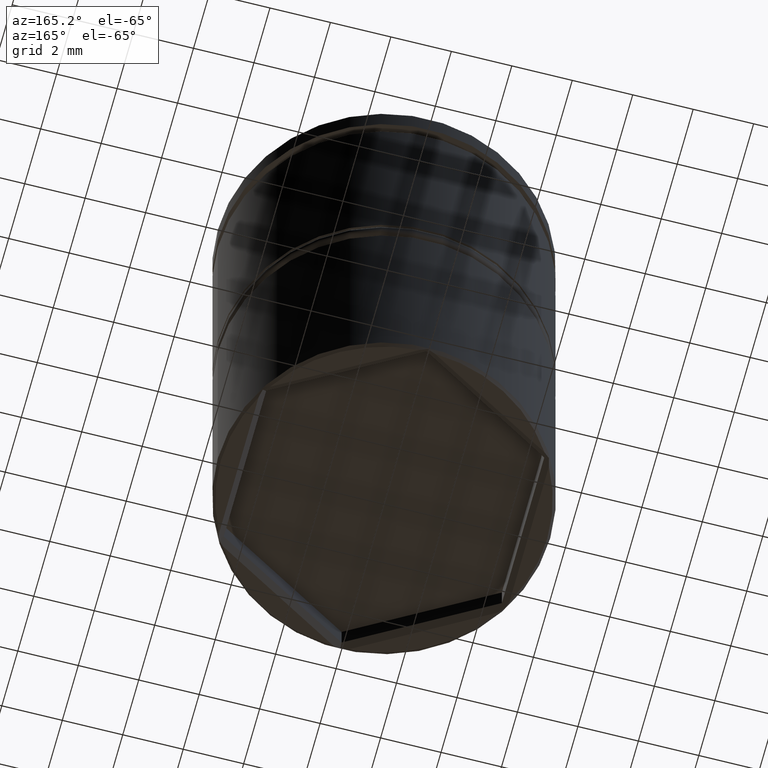
[diagram: clean part render]
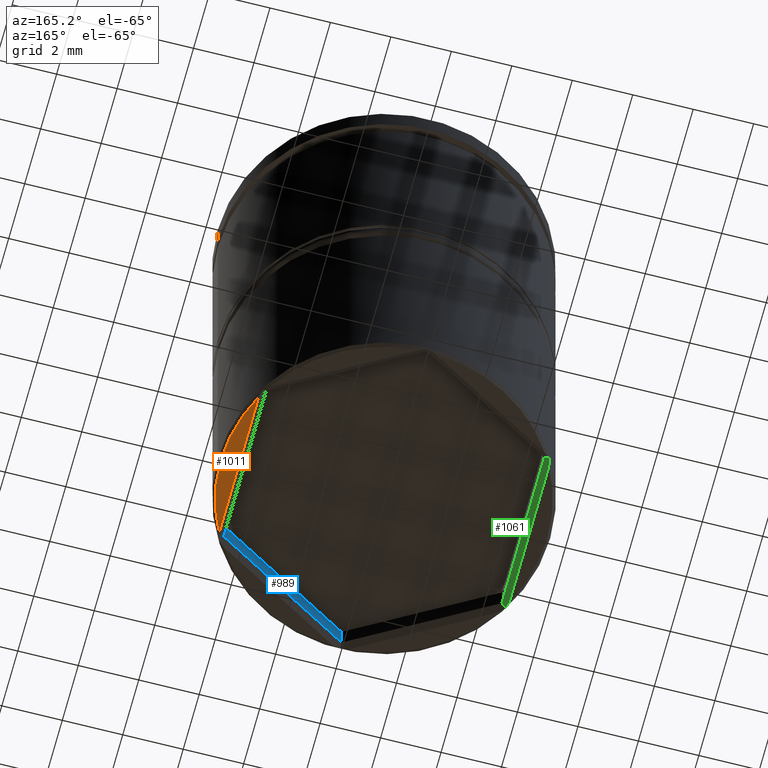
[diagram: same view with three faces highlighted in distinct colors, each labeled with its STEP entity id]
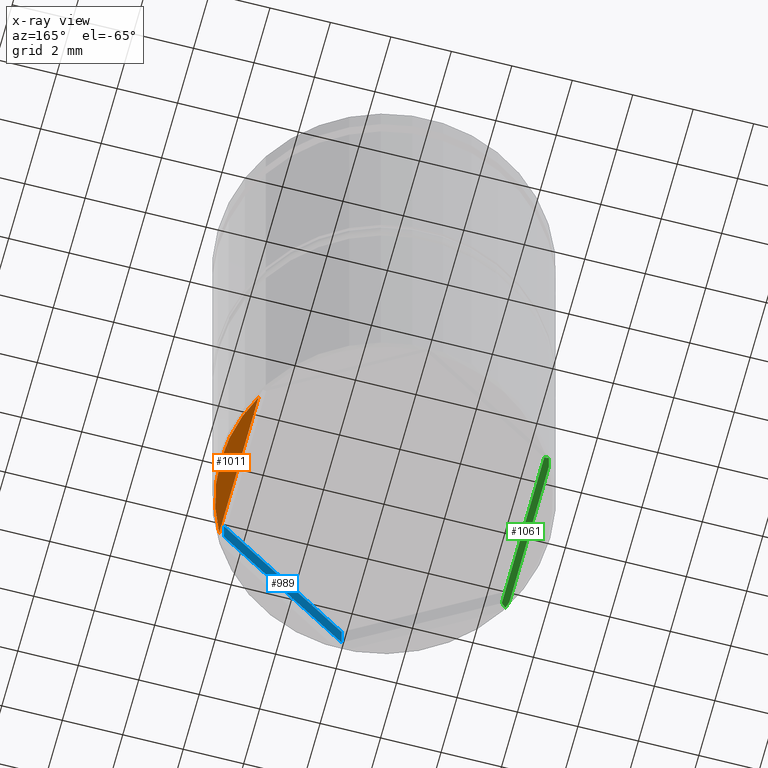
[diagram: x-ray of the same camera — body ghosted, the three highlighted faces saturated]
A machine part, auxiliary view with three faces highlighted in distinct colors.
The next image is the same camera in x-ray (body ghosted, the three faces saturated) — at least one of them is partly hidden behind the body in this view.
Their STEP definitions:

[orange] entity #1011 — the highlighted planar face has unit normal (0, 0, -1).
#32 = CARTESIAN_POINT ( 'NONE',  ( 0.000000000000000000, 0.000000000000000000, -17.50000000000000000 ) ) ;
#171 = CARTESIAN_POINT ( 'NONE',  ( 4.800000000000002487, 2.655811238272278718, -17.50000000000000000 ) ) ;
#182 = PLANE ( 'NONE',  #497 ) ;
#300 = DIRECTION ( 'NONE',  ( 0.000000000000000000, 0.000000000000000000, -1.000000000000000000 ) ) ;
#390 = DIRECTION ( 'NONE',  ( -1.000000000000000000, 0.000000000000000000, -0.000000000000000000 ) ) ;
#434 = EDGE_CURVE ( 'NONE', #600, #1277, #1068, .T. ) ;
#473 = EDGE_CURVE ( 'NONE', #895, #600, #696, .T. ) ;
#497 = AXIS2_PLACEMENT_3D ( 'NONE', #1057, #1350, #390 ) ;
#507 = CARTESIAN_POINT ( 'NONE',  ( 4.800000000000002487, 2.473863375370600082, -17.50000000000000000 ) ) ;
#530 = EDGE_CURVE ( 'NONE', #1277, #895, #542, .T. ) ;
#542 = CIRCLE ( 'NONE', #582, 5.400000000000003908 ) ;
#579 = EDGE_LOOP ( 'NONE', ( #1189, #1124, #1060 ) ) ;
#582 = AXIS2_PLACEMENT_3D ( 'NONE', #1257, #300, #1148 ) ;
#596 = DIRECTION ( 'NONE',  ( -0.000000000000000000, 1.000000000000000000, 0.000000000000000000 ) ) ;
#600 = VERTEX_POINT ( 'NONE', #507 ) ;
#696 = LINE ( 'NONE', #171, #1342 ) ;
#873 = DIRECTION ( 'NONE',  ( 0.000000000000000000, 0.000000000000000000, -1.000000000000000000 ) ) ;
#895 = VERTEX_POINT ( 'NONE', #1330 ) ;
#916 = DIRECTION ( 'NONE',  ( -1.000000000000000000, 0.000000000000000000, 0.000000000000000000 ) ) ;
#1011 = ADVANCED_FACE ( 'NONE', ( #1270 ), #182, .T. ) ;
#1057 = CARTESIAN_POINT ( 'NONE',  ( 0.000000000000000000, 5.500000000000000000, -17.50000000000000000 ) ) ;
#1060 = ORIENTED_EDGE ( 'NONE', *, *, #473, .T. ) ;
#1068 = CIRCLE ( 'NONE', #1250, 5.400000000000003908 ) ;
#1124 = ORIENTED_EDGE ( 'NONE', *, *, #530, .T. ) ;
#1148 = DIRECTION ( 'NONE',  ( -1.000000000000000000, 0.000000000000000000, 0.000000000000000000 ) ) ;
#1189 = ORIENTED_EDGE ( 'NONE', *, *, #434, .T. ) ;
#1228 = CARTESIAN_POINT ( 'NONE',  ( 5.400000000000003908, 0.000000000000000000, -17.50000000000000000 ) ) ;
#1250 = AXIS2_PLACEMENT_3D ( 'NONE', #32, #873, #916 ) ;
#1257 = CARTESIAN_POINT ( 'NONE',  ( 0.000000000000000000, 0.000000000000000000, -17.50000000000000000 ) ) ;
#1270 = FACE_OUTER_BOUND ( 'NONE', #579, .T. ) ;
#1277 = VERTEX_POINT ( 'NONE', #1228 ) ;
#1330 = CARTESIAN_POINT ( 'NONE',  ( 4.800000000000002487, -2.473863375370600082, -17.50000000000000000 ) ) ;
#1342 = VECTOR ( 'NONE', #596, 1000.000000000000000 ) ;
#1350 = DIRECTION ( 'NONE',  ( 0.000000000000000000, 0.000000000000000000, -1.000000000000000000 ) ) ;

[blue] entity #989 — the highlighted planar face has unit normal (0.5, -0.866, 0).
#6 = VECTOR ( 'NONE', #1030, 1000.000000000000000 ) ;
#42 = VECTOR ( 'NONE', #328, 1000.000000000000114 ) ;
#236 = EDGE_CURVE ( 'NONE', #614, #1282, #307, .T. ) ;
#298 = CARTESIAN_POINT ( 'NONE',  ( 4.600000000000003197, -2.655811238272280050, -16.50000000000000000 ) ) ;
#307 = LINE ( 'NONE', #941, #362 ) ;
#323 = EDGE_LOOP ( 'NONE', ( #1073, #867, #679, #772 ) ) ;
#328 = DIRECTION ( 'NONE',  ( -0.8660254037844385966, -0.4999999999999999445, 0.000000000000000000 ) ) ;
#362 = VECTOR ( 'NONE', #533, 1000.000000000000000 ) ;
#409 = CARTESIAN_POINT ( 'NONE',  ( -8.646952822150503169E-16, -5.311622476544560989, -16.50000000000000000 ) ) ;
#412 = DIRECTION ( 'NONE',  ( 0.8660254037844385966, 0.4999999999999999445, 0.000000000000000000 ) ) ;
#457 = LINE ( 'NONE', #1286, #42 ) ;
#462 = CARTESIAN_POINT ( 'NONE',  ( 4.600000000000003197, -2.655811238272280050, -16.50000000000000000 ) ) ;
#533 = DIRECTION ( 'NONE',  ( -0.000000000000000000, -0.000000000000000000, -1.000000000000000000 ) ) ;
#614 = VERTEX_POINT ( 'NONE', #409 ) ;
#661 = CARTESIAN_POINT ( 'NONE',  ( 4.600000000000003197, -2.655811238272280050, -17.30000000000000426 ) ) ;
#665 = EDGE_CURVE ( 'NONE', #1305, #727, #827, .T. ) ;
#679 = ORIENTED_EDGE ( 'NONE', *, *, #236, .F. ) ;
#727 = VERTEX_POINT ( 'NONE', #661 ) ;
#759 = CARTESIAN_POINT ( 'NONE',  ( 4.600000000000003197, -2.655811238272280050, -16.50000000000000000 ) ) ;
#765 = AXIS2_PLACEMENT_3D ( 'NONE', #1155, #1041, #412 ) ;
#772 = ORIENTED_EDGE ( 'NONE', *, *, #874, .F. ) ;
#815 = EDGE_CURVE ( 'NONE', #727, #1282, #457, .T. ) ;
#827 = LINE ( 'NONE', #298, #6 ) ;
#867 = ORIENTED_EDGE ( 'NONE', *, *, #815, .T. ) ;
#874 = EDGE_CURVE ( 'NONE', #1305, #614, #968, .T. ) ;
#941 = CARTESIAN_POINT ( 'NONE',  ( -8.646952822150503169E-16, -5.311622476544560989, -16.50000000000000000 ) ) ;
#944 = PLANE ( 'NONE',  #765 ) ;
#968 = LINE ( 'NONE', #462, #1069 ) ;
#989 = ADVANCED_FACE ( 'NONE', ( #1099 ), #944, .F. ) ;
#1030 = DIRECTION ( 'NONE',  ( -0.000000000000000000, -0.000000000000000000, -1.000000000000000000 ) ) ;
#1041 = DIRECTION ( 'NONE',  ( 0.5000000000000000000, -0.8660254037844387076, 0.000000000000000000 ) ) ;
#1069 = VECTOR ( 'NONE', #1313, 1000.000000000000114 ) ;
#1073 = ORIENTED_EDGE ( 'NONE', *, *, #665, .T. ) ;
#1099 = FACE_OUTER_BOUND ( 'NONE', #323, .T. ) ;
#1139 = CARTESIAN_POINT ( 'NONE',  ( -8.646952822150503169E-16, -5.311622476544560989, -17.30000000000000426 ) ) ;
#1155 = CARTESIAN_POINT ( 'NONE',  ( 4.600000000000003197, -2.655811238272280050, -16.50000000000000000 ) ) ;
#1282 = VERTEX_POINT ( 'NONE', #1139 ) ;
#1286 = CARTESIAN_POINT ( 'NONE',  ( -9.334475960612078863E-16, -5.311622476544560989, -17.30000000000000426 ) ) ;
#1305 = VERTEX_POINT ( 'NONE', #759 ) ;
#1313 = DIRECTION ( 'NONE',  ( -0.8660254037844385966, -0.4999999999999999445, 0.000000000000000000 ) ) ;

[green] entity #1061 — the highlighted planar face has unit normal (0.7071, 0, -0.7071).
#33 = DIRECTION ( 'NONE',  ( 0.000000000000000000, 1.000000000000000000, 0.000000000000000000 ) ) ;
#62 = CARTESIAN_POINT ( 'NONE',  ( -4.733836474405099359, -2.733081762797453074, -17.43383647440510131 ) ) ;
#72 = EDGE_CURVE ( 'NONE', #1213, #1114, #559, .T. ) ;
#97 = VERTEX_POINT ( 'NONE', #1151 ) ;
#122 = LINE ( 'NONE', #552, #1367 ) ;
#124 = CARTESIAN_POINT ( 'NONE',  ( -4.800000000000002487, -2.473863375370600082, -17.50000000000000000 ) ) ;
#165 = CARTESIAN_POINT ( 'NONE',  ( -4.600000000000003197, -2.655811238272279606, -17.30000000000000426 ) ) ;
#229 = ORIENTED_EDGE ( 'NONE', *, *, #896, .F. ) ;
#254 = ORIENTED_EDGE ( 'NONE', *, *, #861, .F. ) ;
#265 = VECTOR ( 'NONE', #1231, 1000.000000000000114 ) ;
#267 = CARTESIAN_POINT ( 'NONE',  ( -4.756853940659738100, 2.647179409273639372, -17.45685394065973739 ) ) ;
#279 = CARTESIAN_POINT ( 'NONE',  ( -4.733836474405099359, 2.733081762797453074, -17.43383647440510131 ) ) ;
#288 = ORIENTED_EDGE ( 'NONE', *, *, #1328, .F. ) ;
#306 = CARTESIAN_POINT ( 'NONE',  ( -4.600000000000003197, 2.655811238272279606, -17.30000000000000426 ) ) ;
#330 = CARTESIAN_POINT ( 'NONE',  ( -4.600000000000003197, 2.655811238272279606, -17.30000000000000426 ) ) ;
#335 = B_SPLINE_CURVE_WITH_KNOTS ( 'NONE', 3,
 ( #124, #1178, #1065, #438 ),
 .UNSPECIFIED., .F., .F.,
 ( 4, 4 ),
 ( 0.000000000000000000, 0.0002755891808806587790 ),
 .UNSPECIFIED. ) ;
#337 = EDGE_CURVE ( 'NONE', #1114, #97, #1300, .T. ) ;
#394 = CARTESIAN_POINT ( 'NONE',  ( -4.733836474405099359, 2.733081762797453074, -17.43383647440510131 ) ) ;
#418 = DIRECTION ( 'NONE',  ( 0.000000000000000000, -1.000000000000000000, 0.000000000000000000 ) ) ;
#438 = CARTESIAN_POINT ( 'NONE',  ( -4.733836474405099359, -2.733081762797453074, -17.43383647440510131 ) ) ;
#476 = DIRECTION ( 'NONE',  ( 0.000000000000000000, -1.000000000000000000, 0.000000000000000000 ) ) ;
#552 = CARTESIAN_POINT ( 'NONE',  ( -4.600000000000003197, 2.655811238272279606, -17.30000000000000426 ) ) ;
#554 = ORIENTED_EDGE ( 'NONE', *, *, #562, .T. ) ;
#559 = B_SPLINE_CURVE_WITH_KNOTS ( 'NONE', 3,
 ( #279, #267, #1223, #599 ),
 .UNSPECIFIED., .F., .F.,
 ( 4, 4 ),
 ( 8.673617379884035472E-19, 0.0002755891808806579658 ),
 .UNSPECIFIED. ) ;
#562 = EDGE_CURVE ( 'NONE', #1213, #1375, #1265, .T. ) ;
#599 = CARTESIAN_POINT ( 'NONE',  ( -4.800000000000002487, 2.473863375370600082, -17.50000000000000000 ) ) ;
#682 = LINE ( 'NONE', #1221, #265 ) ;
#714 = CARTESIAN_POINT ( 'NONE',  ( -4.600000000000003197, -2.655811238272279606, -17.30000000000000426 ) ) ;
#736 = DIRECTION ( 'NONE',  ( 0.6546536707079770867, -0.3779644730092274196, 0.6546536707079770867 ) ) ;
#737 = PLANE ( 'NONE',  #1369 ) ;
#760 = ORIENTED_EDGE ( 'NONE', *, *, #337, .F. ) ;
#770 = CARTESIAN_POINT ( 'NONE',  ( -4.800000000000002487, -2.655811238272279606, -17.50000000000000000 ) ) ;
#830 = VECTOR ( 'NONE', #736, 1000.000000000000114 ) ;
#861 = EDGE_CURVE ( 'NONE', #970, #1375, #122, .T. ) ;
#885 = ORIENTED_EDGE ( 'NONE', *, *, #72, .F. ) ;
#896 = EDGE_CURVE ( 'NONE', #985, #970, #682, .T. ) ;
#970 = VERTEX_POINT ( 'NONE', #165 ) ;
#980 = VECTOR ( 'NONE', #476, 1000.000000000000000 ) ;
#985 = VERTEX_POINT ( 'NONE', #62 ) ;
#1061 = ADVANCED_FACE ( 'NONE', ( #1362 ), #737, .T. ) ;
#1065 = CARTESIAN_POINT ( 'NONE',  ( -4.756853940659738100, -2.647179409273640260, -17.45685394065973739 ) ) ;
#1106 = EDGE_LOOP ( 'NONE', ( #554, #254, #229, #288, #760, #885 ) ) ;
#1114 = VERTEX_POINT ( 'NONE', #1370 ) ;
#1151 = CARTESIAN_POINT ( 'NONE',  ( -4.800000000000002487, -2.473863375370600082, -17.50000000000000000 ) ) ;
#1178 = CARTESIAN_POINT ( 'NONE',  ( -4.778925168607161211, -2.560757131245366747, -17.47892516860716228 ) ) ;
#1213 = VERTEX_POINT ( 'NONE', #394 ) ;
#1221 = CARTESIAN_POINT ( 'NONE',  ( -4.600000000000003197, -2.655811238272279606, -17.30000000000000426 ) ) ;
#1223 = CARTESIAN_POINT ( 'NONE',  ( -4.778925168607161211, 2.560757131245366303, -17.47892516860716228 ) ) ;
#1231 = DIRECTION ( 'NONE',  ( 0.6546536707079767536, 0.3779644730092285299, 0.6546536707079767536 ) ) ;
#1265 = LINE ( 'NONE', #306, #830 ) ;
#1300 = LINE ( 'NONE', #770, #980 ) ;
#1328 = EDGE_CURVE ( 'NONE', #97, #985, #335, .T. ) ;
#1362 = FACE_OUTER_BOUND ( 'NONE', #1106, .T. ) ;
#1367 = VECTOR ( 'NONE', #33, 1000.000000000000000 ) ;
#1369 = AXIS2_PLACEMENT_3D ( 'NONE', #714, #1377, #418 ) ;
#1370 = CARTESIAN_POINT ( 'NONE',  ( -4.800000000000002487, 2.473863375370600082, -17.50000000000000000 ) ) ;
#1375 = VERTEX_POINT ( 'NONE', #330 ) ;
#1377 = DIRECTION ( 'NONE',  ( 0.7071067811865475727, 0.000000000000000000, -0.7071067811865475727 ) ) ;